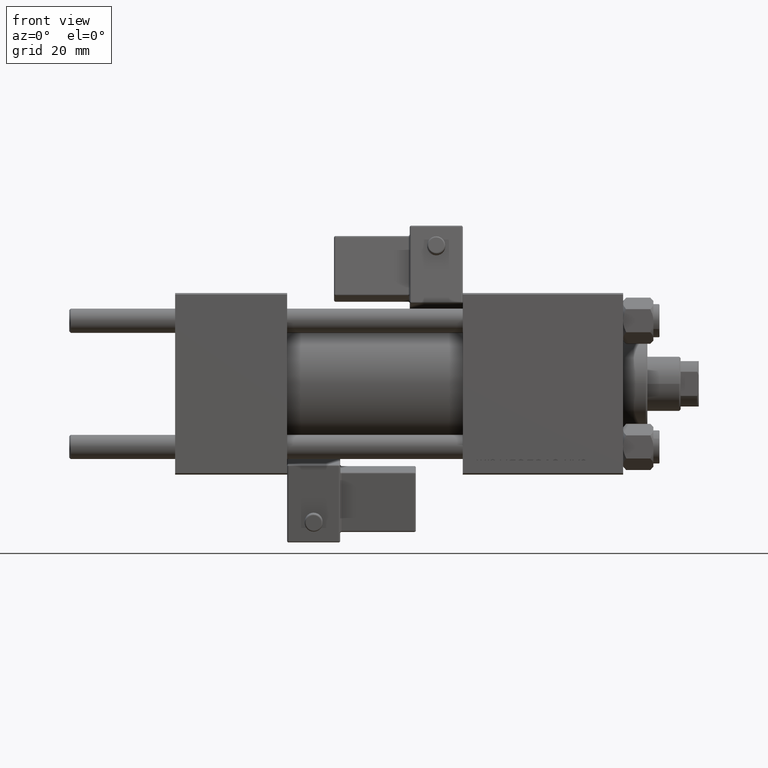
[diagram: clean part render]
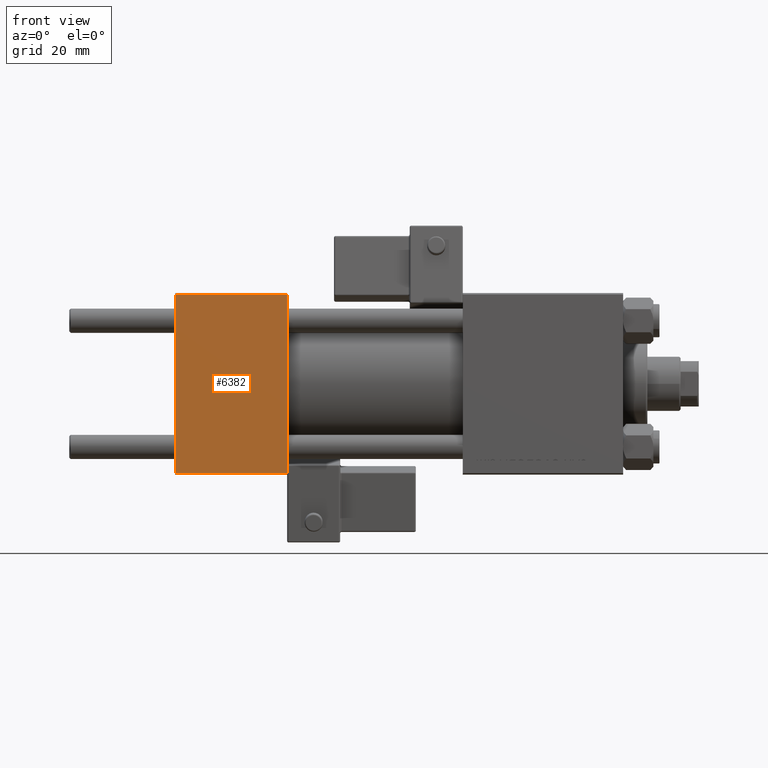
[diagram: same view with one face highlighted and labeled with its STEP entity id]
A machine part, front view. The second image highlights one B-rep face of the part: STEP entity #6382.
In plain terms, the highlighted planar face has unit normal (0, 1, 0).
Its self-contained STEP definition (entity closure, byte-faithful):
#1204 = FACE_OUTER_BOUND ( 'NONE', #44814, .T. ) ;
#6382 = ADVANCED_FACE ( 'NONE', ( #1204 ), #45185, .F. ) ;
#9368 = DIRECTION ( 'NONE',  ( 0.000000000000000000, -0.000000000000000000, 1.000000000000000000 ) ) ;
#11480 = EDGE_CURVE ( 'NONE', #40515, #20647, #18584, .T. ) ;
#11750 = DIRECTION ( 'NONE',  ( -1.000000000000000000, 0.000000000000000000, 0.000000000000000000 ) ) ;
#13576 = CARTESIAN_POINT ( 'NONE',  ( 37.00000000000000000, -30.00000000000000000, -29.50000000000001776 ) ) ;
#13834 = CARTESIAN_POINT ( 'NONE',  ( 37.00000000000000000, -30.00000000000000000, 29.99999999999999289 ) ) ;
#16760 = VERTEX_POINT ( 'NONE', #24053 ) ;
#18348 = ORIENTED_EDGE ( 'NONE', *, *, #24054, .T. ) ;
#18584 = LINE ( 'NONE', #35183, #45759 ) ;
#19713 = EDGE_CURVE ( 'NONE', #20647, #31150, #23654, .T. ) ;
#20647 = VERTEX_POINT ( 'NONE', #23859 ) ;
#23489 = ORIENTED_EDGE ( 'NONE', *, *, #33302, .F. ) ;
#23654 = LINE ( 'NONE', #39706, #50157 ) ;
#23859 = CARTESIAN_POINT ( 'NONE',  ( 0.000000000000000000, -30.00000000000000000, -29.50000000000001776 ) ) ;
#24053 = CARTESIAN_POINT ( 'NONE',  ( 37.00000000000000000, -30.00000000000000000, 29.49999999999999289 ) ) ;
#24054 = EDGE_CURVE ( 'NONE', #16760, #40515, #31505, .T. ) ;
#26471 = DIRECTION ( 'NONE',  ( 0.000000000000000000, 0.000000000000000000, -1.000000000000000000 ) ) ;
#30032 = LINE ( 'NONE', #42668, #42097 ) ;
#30159 = DIRECTION ( 'NONE',  ( -0.000000000000000000, 1.000000000000000000, 0.000000000000000000 ) ) ;
#31150 = VERTEX_POINT ( 'NONE', #13576 ) ;
#31505 = LINE ( 'NONE', #39917, #43585 ) ;
#31948 = ORIENTED_EDGE ( 'NONE', *, *, #19713, .T. ) ;
#33302 = EDGE_CURVE ( 'NONE', #16760, #31150, #30032, .T. ) ;
#34782 = DIRECTION ( 'NONE',  ( 0.000000000000000000, 0.000000000000000000, -1.000000000000000000 ) ) ;
#35183 = CARTESIAN_POINT ( 'NONE',  ( 0.000000000000000000, -30.00000000000000000, 29.99999999999999289 ) ) ;
#36030 = DIRECTION ( 'NONE',  ( 1.000000000000000000, 0.000000000000000000, 0.000000000000000000 ) ) ;
#39706 = CARTESIAN_POINT ( 'NONE',  ( 37.00000000000000000, -30.00000000000000000, -29.50000000000001776 ) ) ;
#39917 = CARTESIAN_POINT ( 'NONE',  ( 37.00000000000000000, -30.00000000000000000, 29.49999999999999289 ) ) ;
#40515 = VERTEX_POINT ( 'NONE', #44375 ) ;
#41396 = ORIENTED_EDGE ( 'NONE', *, *, #11480, .T. ) ;
#42097 = VECTOR ( 'NONE', #34782, 1000.000000000000000 ) ;
#42668 = CARTESIAN_POINT ( 'NONE',  ( 37.00000000000000000, -30.00000000000000000, 29.99999999999999289 ) ) ;
#43585 = VECTOR ( 'NONE', #11750, 1000.000000000000000 ) ;
#44375 = CARTESIAN_POINT ( 'NONE',  ( 0.000000000000000000, -30.00000000000000000, 29.49999999999999289 ) ) ;
#44814 = EDGE_LOOP ( 'NONE', ( #41396, #31948, #23489, #18348 ) ) ;
#45185 = PLANE ( 'NONE',  #48088 ) ;
#45759 = VECTOR ( 'NONE', #26471, 1000.000000000000000 ) ;
#48088 = AXIS2_PLACEMENT_3D ( 'NONE', #13834, #30159, #9368 ) ;
#50157 = VECTOR ( 'NONE', #36030, 1000.000000000000000 ) ;